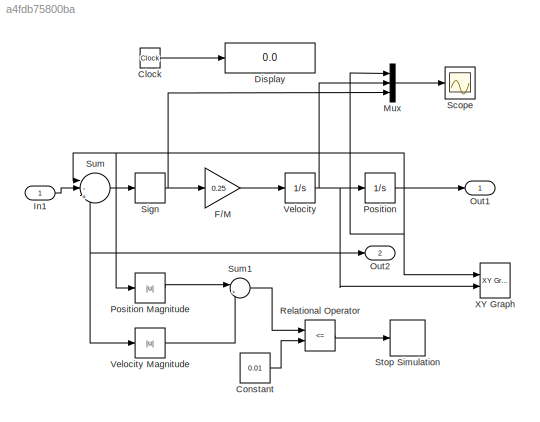
MODEL slx_a4fdb75800ba
KIND model
BLOCK [Clock] Clock
BLOCK [Constant] Constant
  Value = 0.01
BLOCK [Display] Display
  Decimation = 1
  Ports = [1]
BLOCK [Gain] F//M
  Gain = 0.25
  OutDataTypeStr = Inherit: Inherit via internal rule
  ParamDataTypeStr = Inherit: Inherit via internal rule
  SaturateOnIntegerOverflow = off
BLOCK [Inport] In1
  IconDisplay = Port number
BLOCK [Mux] Mux
  DisplayOption = bar
  Inputs = 3
  Ports = [3, 1]
BLOCK [Outport] Out1
  IconDisplay = Port number
BLOCK [Outport] Out2
  IconDisplay = Port number
  Port = 2
BLOCK [Integrator] Position
  InitialCondition = -1.5
  Ports = [1, 1]
BLOCK [Abs] Position Magnitude
  SaturateOnIntegerOverflow = off
BLOCK [RelationalOperator] Relational Operator
  InputSameDT = off
  Operator = <=
  OutDataTypeStr = boolean
  Ports = [2, 1]
BLOCK [Scope] Scope
  DataFormat = StructureWithTime
  Floating = off
  MaxDataPoints = 70000
  NumInputPorts = 1
  Ports = [1]
  SampleTime = 0
  ShowLegends = off
BLOCK [Signum] Sign
BLOCK [Stop] Stop Simulation
BLOCK [Sum] Sum
  IconShape = round
  InputSameDT = off
  Inputs = |-|+|-
  OutDataTypeStr = Inherit: Inherit via internal rule
  Ports = [3, 1]
  SaturateOnIntegerOverflow = off
BLOCK [Sum] Sum1
  IconShape = round
  InputSameDT = off
  Inputs = |++
  OutDataTypeStr = Inherit: Inherit via internal rule
  Ports = [2, 1]
  SaturateOnIntegerOverflow = off
BLOCK [Integrator] Velocity
  InitialCondition = 2.5
  Ports = [1, 1]
BLOCK [Abs] Velocity Magnitude
  SaturateOnIntegerOverflow = off
BLOCK [Reference] XY Graph  REF=simulink/Sinks/XY Graph
  Ports = [2]
  SourceBlock = simulink/Sinks/XY Graph
  SourceType = XY scope.
  st = -1
  xmax = 15
  xmin = -15
  ymax = 5
  ymin = -5
LINE Clock:1 -> Display:1
LINE Constant:1 -> Relational Operator:2
LINE F//M:1 -> Velocity:1
LINE In1:1 -> Sum:2
LINE Mux:1 -> Scope:1
LINE Position Magnitude:1 -> Sum1:1
NET Position:1 -> Mux:1, Out1:1, Position Magnitude:1, Sum:1, XY Graph:1
LINE Relational Operator:1 -> Stop Simulation:1
NET Sign:1 -> F//M:1, Mux:3
LINE Sum1:1 -> Relational Operator:1
LINE Sum:1 -> Sign:1
LINE Velocity Magnitude:1 -> Sum1:2
NET Velocity:1 -> Mux:2, Out2:1, Position:1, Sum:3, Velocity Magnitude:1, XY Graph:2
note: NET lines group one-source signal fan-out (src -> all destinations, sorted); 1:1 wires keep LINE
